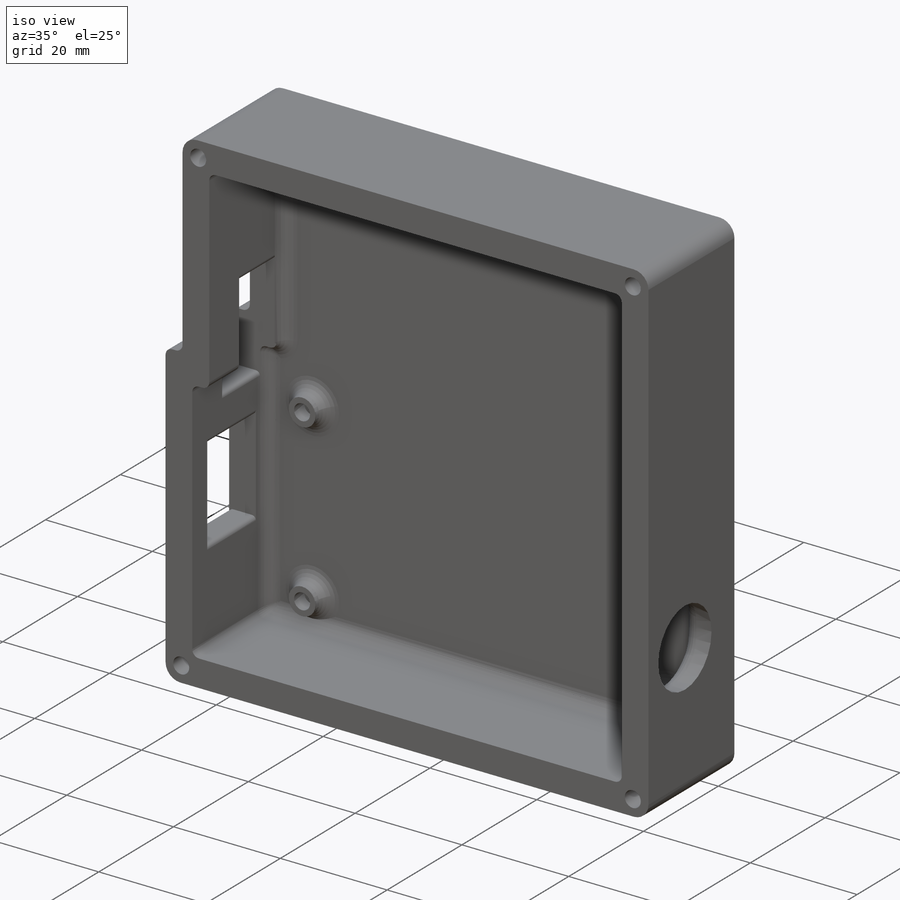
[diagram: iso view]
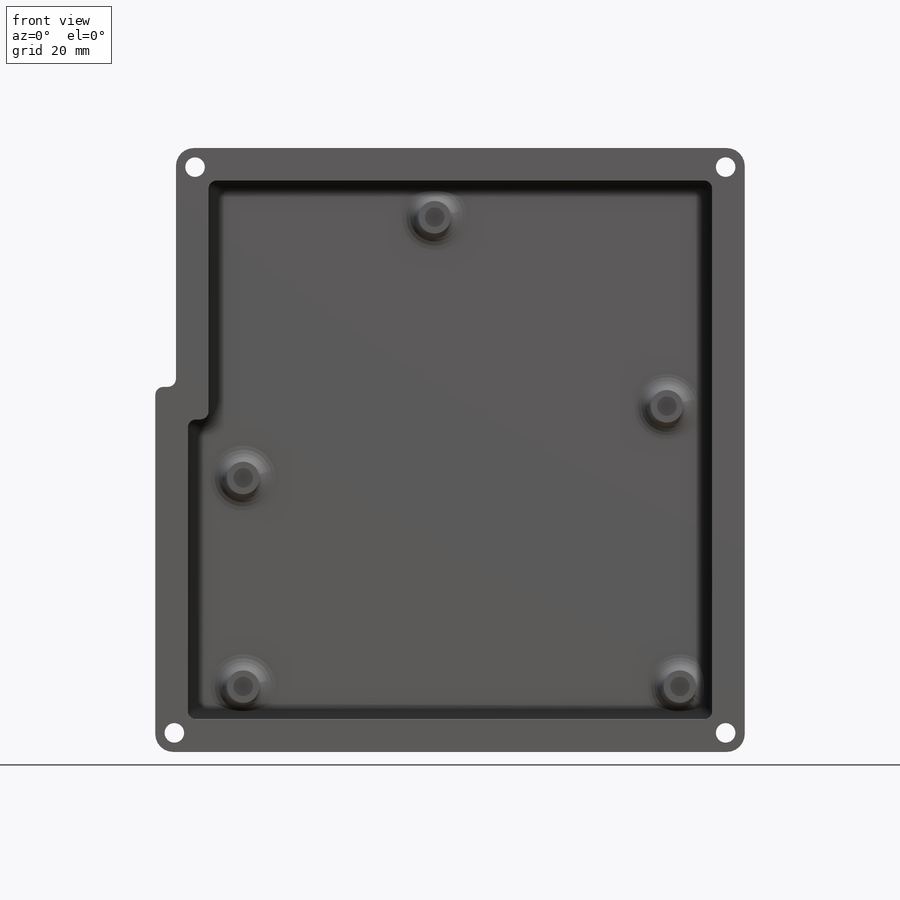
[diagram: front view]
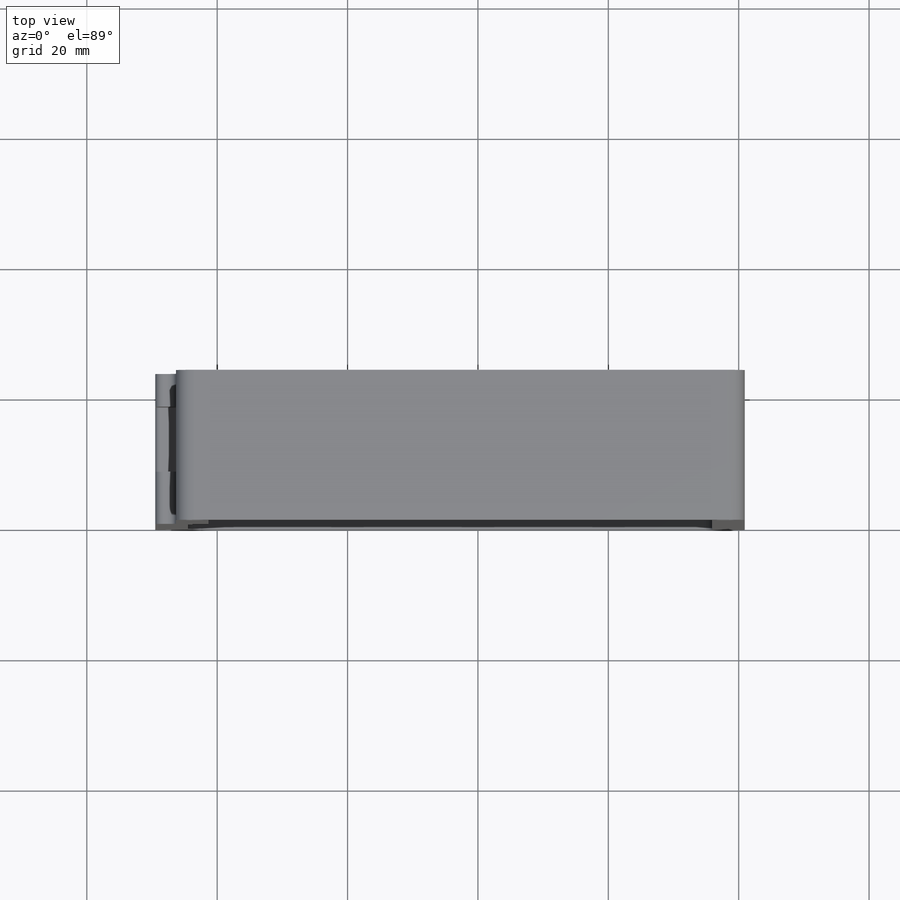
[diagram: top view]
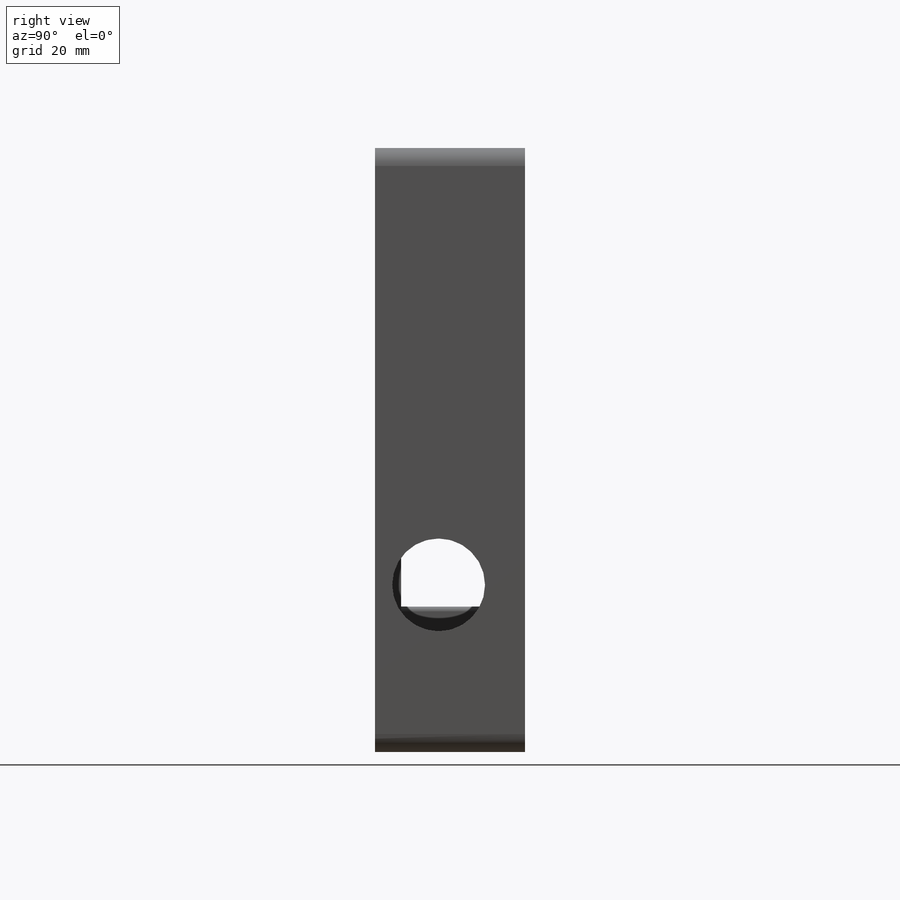
[diagram: right view]
SOLIDWORKS PART (.sldprt)
format: sldprt  version: not decoded by parser v0  size: 1,401,856 bytes
history: native  units: mm
features: fillet x11, sketch x8, extrude x5, cut_extrude x3, material x1 (+11 scaffold rows collapsed)
feature tree (39):
  scaffold x11  (default folders/planes/origin — collapsed)
  material  "ABS"
  sketch  "Sketch1"  dims[c1.D5=3.0mm c1.D26=3.0mm c1.D27=3.0mm c1.D28=5.0mm c1.D29=2.0mm c2.D27=3.0mm c2.D1=74.93mm c2.D2=80.645mm c2.D3=40.005mm c2.D4=3.175mm c2.D6=4.026mm c2.D7=3.984mm c2.D8=4.026mm c2.D9=70.984mm c2.D10=3.984mm c2.D11=36.026mm c2.D12=68.984mm c2.D13=47.026mm c2.D14=76.026mm c2.D15=30.1845mm c2.D16=18.796mm c2.D17=12.192mm c2.D18=0.25mm c2.D19=12.192mm c2.D20=14.859mm c2.D21=0.25mm c2.D22=2.413mm c2.D23=18.034mm c2.D24=0.25mm c2.D25=1.0mm c3.D27=~1.242641mm c3.D26=5.0mm c4.D27=42.005mm c4.D30=1.0mm c4.D25=5.0mm c4.D26=5.0mm c5.D30=5.0mm c5.D31=5.355mm c6.D30=5.0mm c6.D31=5.0mm c6.D26=5.0mm c7.D30=5.0mm c7.D31=5.0mm c7.D32=4.5mm c7.D33=4.5mm c7.D34=5.0mm c7.D35=5.0mm c7.D26=1.0mm c8.D30=1.0mm c8.D31=1.0mm]
  extrude  "Boss-Extrude1"  Depth=3mm
  extrude  "Boss-Extrude2"  [1 undecoded]
  sketch  "Sketch1<3>"  dims[D1=20.0mm]
  extrude  "Boss-Extrude3"  [1 undecoded]
  sketch  "Sketch1<4>"  dims[D1=2.75mm]
  fillet  "Fillet4"  Radius=1.25mm
  fillet  "Fillet1"  Radius=2.5mm
  sketch  "Sketch2"  dims[D1=3.0mm D2=2.5mm D3=2.5mm D4=13.0mm D5=1.5mm]
  cut_extrude  "Cut-Extrude1"  [1 undecoded]
  sketch  "Sketch3"  dims[D1=2.0mm D2=10.0mm D3=2.0mm D4=20.0mm]
  cut_extrude  "Cut-Extrude2"  [1 undecoded]
  sketch  "Sketch4"  dims[D2=14.25mm D1=0.0mm D3=10.25mm]
  cut_extrude  "Cut-Extrude3"  [1 undecoded]
  fillet  "Fillet2"  Radius=2.5mm
  extrude  "Boss-Extrude4"  [1 undecoded]
  sketch  "Sketch1<7>"  dims[D1=30.0mm]
  extrude  "Boss-Extrude5"  [1 undecoded]
  sketch  "Sketch1<8>"  dims[D1=3.0mm]
  fillet  "Fillet3"  Radius=2.75mm
  fillet  "Fillet5"  Radius=1.25mm
  fillet  "Fillet6"  Radius=0.75mm
  fillet  "Fillet7"  Radius=2.75mm
  fillet  "Fillet8"  Radius=1.25mm
  fillet  "Fillet9"  Radius=1.25mm
  fillet  "Fillet10"  Radius=2.75mm
  fillet  "Fillet11"  Radius=1.25mm
decode coverage: 20 of 27 modeling features carry decoded parameters
note: ~ marks probable driven/reference dimensions
note: 7 parameter values undecoded
summary: no parameter record found for 7 features
note: suppression state not decoded; provenance and decode notes live in map.json
